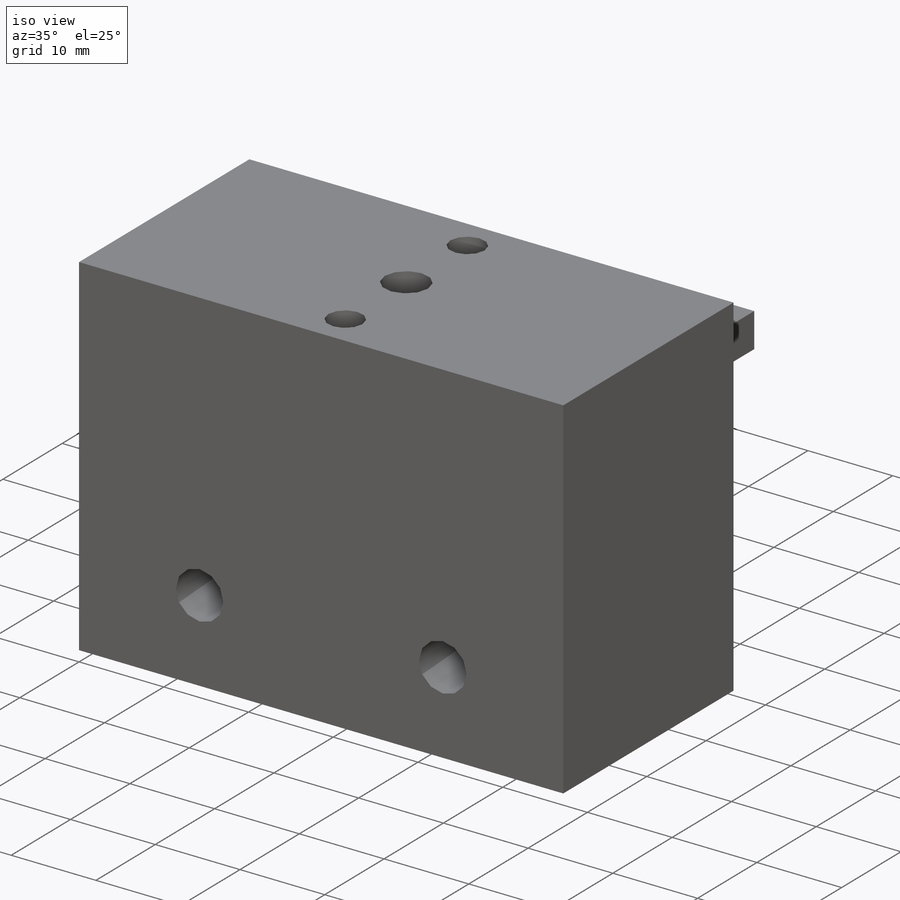
[diagram: iso view]
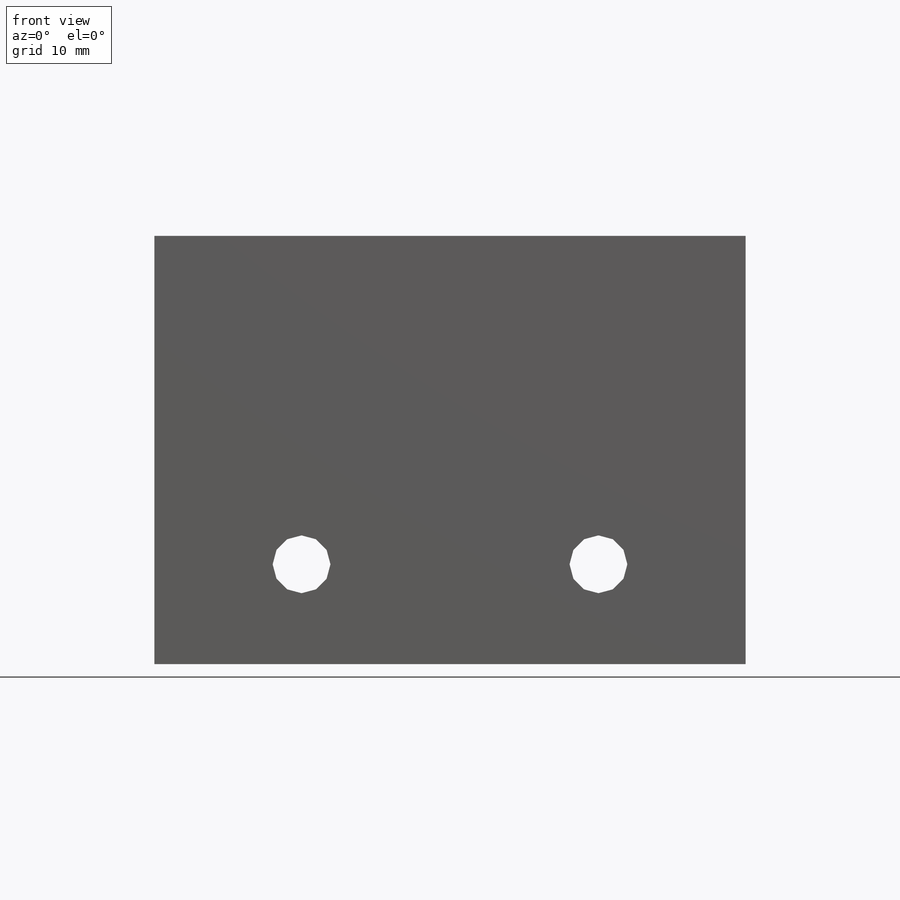
[diagram: front view]
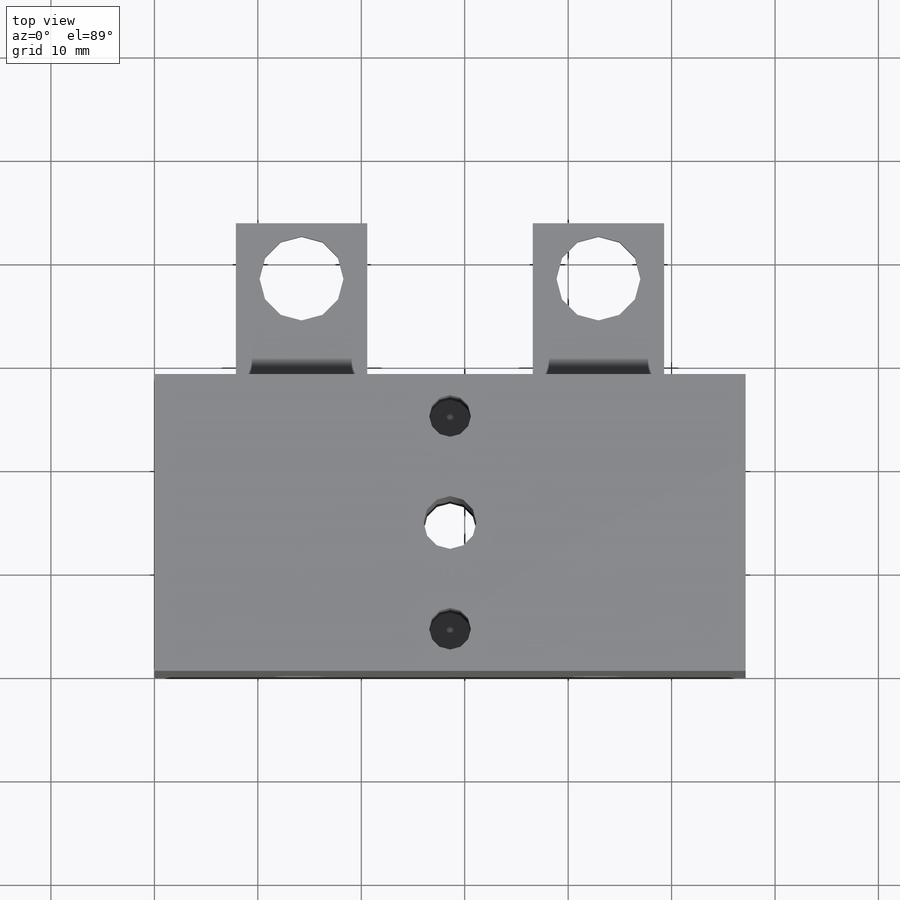
[diagram: top view]
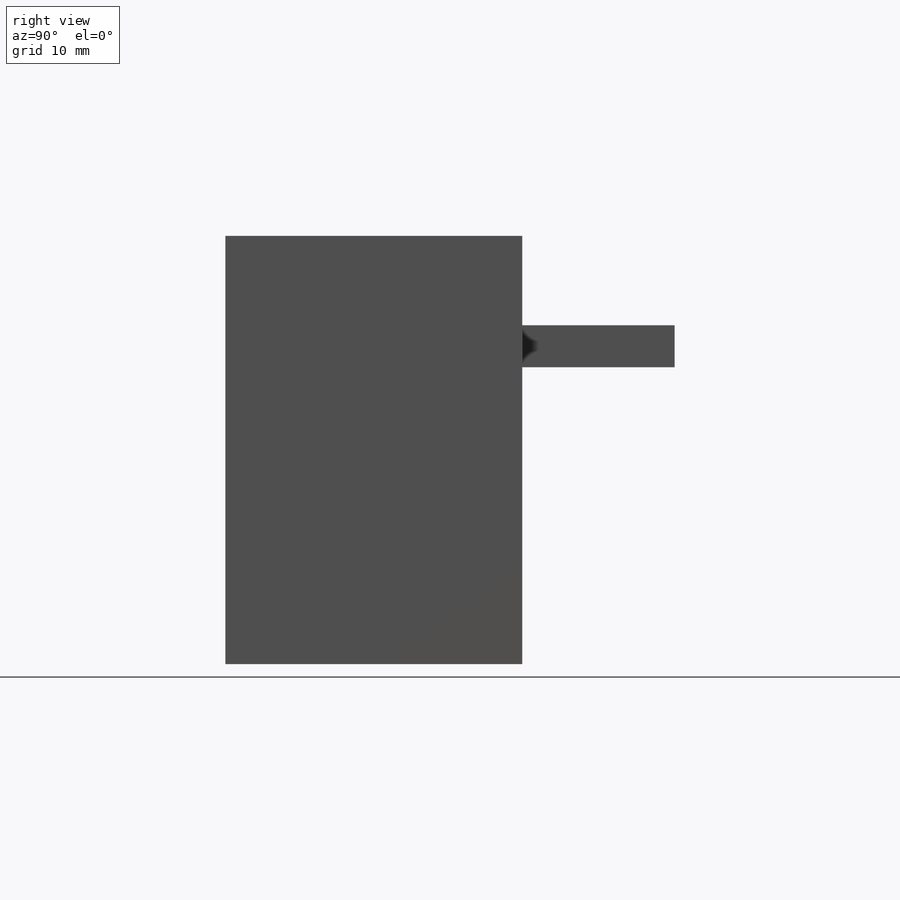
[diagram: right view]
SOLIDWORKS PART (.sldprt)
format: sldprt  version: not decoded by parser v0  size: 222,208 bytes
history: native  units: mm
features: sketch x6, cut_extrude x4, extrude x2, material x1 (+13 scaffold rows collapsed)
feature tree (26):
  scaffold x13  (default folders/planes/origin — collapsed)
  material  "Material <not specified>"
  sketch  "Sketch1"  dims[D1=28.702mm D2=57.15mm]
  extrude  "Extrude1"  Depth=41.402mm
  sketch  "Sketch2"  dims[D1=5.1054mm]
  cut_extrude  "Cut-Extrude1"  [1 undecoded]
  sketch  "Sketch3"  dims[D3=4.0386mm D4=4.0386mm D1=4.064mm D2=24.638mm]
  cut_extrude  "Cut-Extrude2"  Depth=25.4mm
  sketch  "Sketch8"  dims[D1=5.588mm D2=5.588mm D3=14.224mm D4=14.224mm D5=31.75mm D6=31.75mm]
  cut_extrude  "Cut-Extrude3"  [1 undecoded]
  sketch  "Sketch9"  dims[c1.D1=4.064mm c1.D2=4.064mm c1.D3=12.7mm c1.D4=12.7mm c1.D5=7.62mm c1.D6=7.62mm c1.D7=8.636mm c1.D8=8.636mm c2.D5=14.224mm c2.D6=42.926mm]
  extrude  "Extrude2"  Depth=14.732mm
  sketch  "Sketch10"  dims[D1=8.128mm D2=8.128mm D3=14.224mm D4=42.926mm D5=38.1mm D6=38.1mm]
  cut_extrude  "Cut-Extrude4"  [1 undecoded]
decode coverage: 9 of 12 modeling features carry decoded parameters
note: 3 parameter values undecoded
summary: no parameter record found for 3 features
note: suppression state not decoded; provenance and decode notes live in map.json
